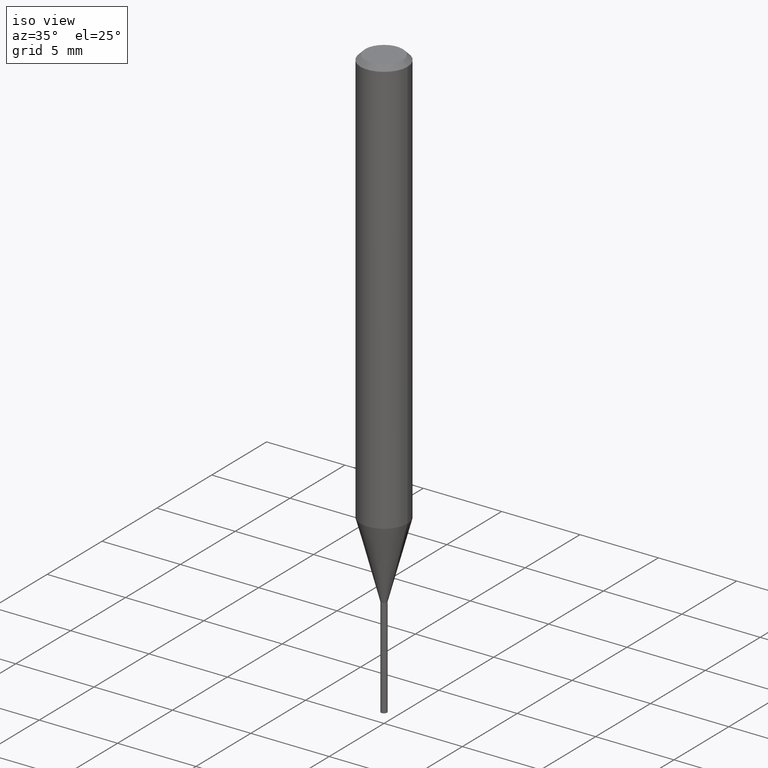
[diagram: clean part render]
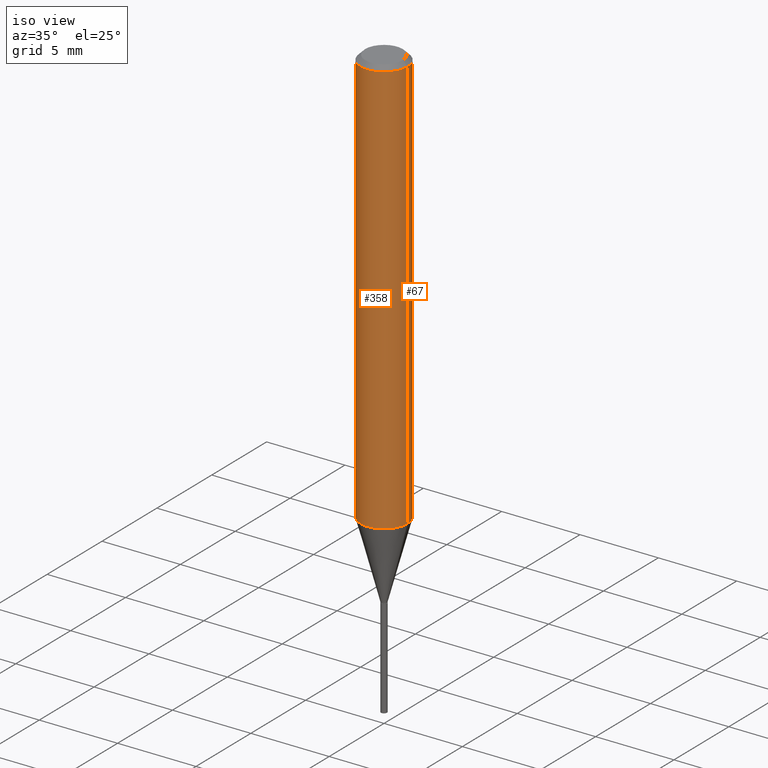
[diagram: same view with one multi-face feature highlighted, each face labeled with its STEP entity id]
A machine part, iso view. The highlighted faces form ONE feature: a constant-radius fillet chain: 2 tangent blend faces with common blend radius 1.4999 mm. The faces share edges in the B-rep.
Their STEP definitions:
[1] entity #67 (Cylinder):
#6 = VECTOR ( 'NONE', #190, 39.37007874015748143 ) ;
#8 = EDGE_LOOP ( 'NONE', ( #393, #370, #74, #109 ) ) ;
#46 = CARTESIAN_POINT ( 'NONE',  ( 0.05904999999999999832, -4.535783407291118600E-16, -0.01181000000000007218 ) ) ;
#63 = CARTESIAN_POINT ( 'NONE',  ( 0.000000000000000000, 0.000000000000000000, 0.000000000000000000 ) ) ;
#67 = ADVANCED_FACE ( 'NONE', ( #169 ), #316, .T. ) ;
#73 = AXIS2_PLACEMENT_3D ( 'NONE', #415, #229, #122 ) ;
#74 = ORIENTED_EDGE ( 'NONE', *, *, #471, .F. ) ;
#93 = CARTESIAN_POINT ( 'NONE',  ( 0.05905000000000011628, -4.076349087267857001E-15, -1.049412780869824147 ) ) ;
#97 = DIRECTION ( 'NONE',  ( -2.445468806185136597E-29, 3.491481338843145583E-15, 1.000000000000000000 ) ) ;
#109 = ORIENTED_EDGE ( 'NONE', *, *, #214, .F. ) ;
#122 = DIRECTION ( 'NONE',  ( 1.000000000000000000, -6.982962677686266711E-15, 0.000000000000000000 ) ) ;
#143 = DIRECTION ( 'NONE',  ( -2.445468806185136597E-29, 3.491481338843145583E-15, 1.000000000000000000 ) ) ;
#168 = DIRECTION ( 'NONE',  ( 1.000000000000000000, -6.982962677686266711E-15, 4.876176775795935793E-29 ) ) ;
#169 = FACE_OUTER_BOUND ( 'NONE', #8, .T. ) ;
#178 = VERTEX_POINT ( 'NONE', #93 ) ;
#190 = DIRECTION ( 'NONE',  ( -2.445468806185136877E-29, 3.491481338843145188E-15, 1.000000000000000000 ) ) ;
#206 = LINE ( 'NONE', #283, #339 ) ;
#214 = EDGE_CURVE ( 'NONE', #178, #480, #206, .T. ) ;
#216 = VERTEX_POINT ( 'NONE', #314 ) ;
#225 = CIRCLE ( 'NONE', #412, 0.05905000000000011628 ) ;
#229 = DIRECTION ( 'NONE',  ( -2.445468806185136597E-29, 3.491481338843145583E-15, 1.000000000000000000 ) ) ;
#252 = VERTEX_POINT ( 'NONE', #490 ) ;
#283 = CARTESIAN_POINT ( 'NONE',  ( 0.05905000000000006077, -4.123439461173744764E-16, 2.879382386107503023E-30 ) ) ;
#314 = CARTESIAN_POINT ( 'NONE',  ( -0.05904999999999999832, -1.433044282414769623E-15, -0.01181000000000007218 ) ) ;
#316 = CYLINDRICAL_SURFACE ( 'NONE', #427, 0.05905000000000006077 ) ;
#320 = DIRECTION ( 'NONE',  ( -2.445468806185136877E-29, 3.491481338843145188E-15, 1.000000000000000000 ) ) ;
#325 = EDGE_CURVE ( 'NONE', #252, #216, #361, .T. ) ;
#329 = CARTESIAN_POINT ( 'NONE',  ( -0.05905000000000006077, 4.195754854663395916E-16, -2.904631170795524694E-30 ) ) ;
#339 = VECTOR ( 'NONE', #320, 39.37007874015748143 ) ;
#361 = LINE ( 'NONE', #329, #6 ) ;
#367 = EDGE_CURVE ( 'NONE', #178, #252, #225, .T. ) ;
#370 = ORIENTED_EDGE ( 'NONE', *, *, #325, .T. ) ;
#393 = ORIENTED_EDGE ( 'NONE', *, *, #367, .T. ) ;
#412 = AXIS2_PLACEMENT_3D ( 'NONE', #486, #143, #453 ) ;
#415 = CARTESIAN_POINT ( 'NONE',  ( 2.888098660104664204E-31, -4.123439461173780263E-17, -0.01181000000000007218 ) ) ;
#427 = AXIS2_PLACEMENT_3D ( 'NONE', #63, #97, #168 ) ;
#449 = CIRCLE ( 'NONE', #73, 0.05904999999999999832 ) ;
#453 = DIRECTION ( 'NONE',  ( 1.000000000000000000, -6.982962677686266711E-15, 0.000000000000000000 ) ) ;
#471 = EDGE_CURVE ( 'NONE', #480, #216, #449, .T. ) ;
#480 = VERTEX_POINT ( 'NONE', #46 ) ;
#486 = CARTESIAN_POINT ( 'NONE',  ( 2.566306220429153348E-29, -3.664005141150482080E-15, -1.049412780869824147 ) ) ;
#490 = CARTESIAN_POINT ( 'NONE',  ( -0.05905000000000011628, -3.244429655684142193E-15, -1.049412780869824147 ) ) ;
[2] entity #358 (Cylinder):
#6 = VECTOR ( 'NONE', #190, 39.37007874015748143 ) ;
#11 = AXIS2_PLACEMENT_3D ( 'NONE', #403, #75, #29 ) ;
#29 = DIRECTION ( 'NONE',  ( 1.000000000000000000, -6.982962677686266711E-15, 4.876176775795935793E-29 ) ) ;
#46 = CARTESIAN_POINT ( 'NONE',  ( 0.05904999999999999832, -4.535783407291118600E-16, -0.01181000000000007218 ) ) ;
#75 = DIRECTION ( 'NONE',  ( -2.445468806185136597E-29, 3.491481338843145583E-15, 1.000000000000000000 ) ) ;
#93 = CARTESIAN_POINT ( 'NONE',  ( 0.05905000000000011628, -4.076349087267857001E-15, -1.049412780869824147 ) ) ;
#117 = EDGE_CURVE ( 'NONE', #216, #480, #311, .T. ) ;
#148 = CARTESIAN_POINT ( 'NONE',  ( 2.566306220429153348E-29, -3.664005141150482080E-15, -1.049412780869824147 ) ) ;
#149 = CIRCLE ( 'NONE', #299, 0.05905000000000011628 ) ;
#178 = VERTEX_POINT ( 'NONE', #93 ) ;
#190 = DIRECTION ( 'NONE',  ( -2.445468806185136877E-29, 3.491481338843145188E-15, 1.000000000000000000 ) ) ;
#206 = LINE ( 'NONE', #283, #339 ) ;
#211 = CARTESIAN_POINT ( 'NONE',  ( 2.888098660104664204E-31, -4.123439461173780263E-17, -0.01181000000000007218 ) ) ;
#214 = EDGE_CURVE ( 'NONE', #178, #480, #206, .T. ) ;
#216 = VERTEX_POINT ( 'NONE', #314 ) ;
#244 = DIRECTION ( 'NONE',  ( -2.445468806185136597E-29, 3.491481338843145583E-15, 1.000000000000000000 ) ) ;
#252 = VERTEX_POINT ( 'NONE', #490 ) ;
#262 = DIRECTION ( 'NONE',  ( 1.000000000000000000, -6.982962677686266711E-15, 0.000000000000000000 ) ) ;
#283 = CARTESIAN_POINT ( 'NONE',  ( 0.05905000000000006077, -4.123439461173744764E-16, 2.879382386107503023E-30 ) ) ;
#293 = ORIENTED_EDGE ( 'NONE', *, *, #214, .T. ) ;
#299 = AXIS2_PLACEMENT_3D ( 'NONE', #148, #301, #262 ) ;
#301 = DIRECTION ( 'NONE',  ( -2.445468806185136597E-29, 3.491481338843145583E-15, 1.000000000000000000 ) ) ;
#303 = FACE_OUTER_BOUND ( 'NONE', #382, .T. ) ;
#311 = CIRCLE ( 'NONE', #418, 0.05904999999999999832 ) ;
#314 = CARTESIAN_POINT ( 'NONE',  ( -0.05904999999999999832, -1.433044282414769623E-15, -0.01181000000000007218 ) ) ;
#320 = DIRECTION ( 'NONE',  ( -2.445468806185136877E-29, 3.491481338843145188E-15, 1.000000000000000000 ) ) ;
#325 = EDGE_CURVE ( 'NONE', #252, #216, #361, .T. ) ;
#329 = CARTESIAN_POINT ( 'NONE',  ( -0.05905000000000006077, 4.195754854663395916E-16, -2.904631170795524694E-30 ) ) ;
#339 = VECTOR ( 'NONE', #320, 39.37007874015748143 ) ;
#358 = ADVANCED_FACE ( 'NONE', ( #303 ), #363, .T. ) ;
#361 = LINE ( 'NONE', #329, #6 ) ;
#363 = CYLINDRICAL_SURFACE ( 'NONE', #11, 0.05905000000000006077 ) ;
#380 = ORIENTED_EDGE ( 'NONE', *, *, #325, .F. ) ;
#382 = EDGE_LOOP ( 'NONE', ( #380, #444, #293, #448 ) ) ;
#390 = EDGE_CURVE ( 'NONE', #252, #178, #149, .T. ) ;
#403 = CARTESIAN_POINT ( 'NONE',  ( 0.000000000000000000, 0.000000000000000000, 0.000000000000000000 ) ) ;
#418 = AXIS2_PLACEMENT_3D ( 'NONE', #211, #244, #468 ) ;
#444 = ORIENTED_EDGE ( 'NONE', *, *, #390, .T. ) ;
#448 = ORIENTED_EDGE ( 'NONE', *, *, #117, .F. ) ;
#468 = DIRECTION ( 'NONE',  ( 1.000000000000000000, -6.982962677686266711E-15, 0.000000000000000000 ) ) ;
#480 = VERTEX_POINT ( 'NONE', #46 ) ;
#490 = CARTESIAN_POINT ( 'NONE',  ( -0.05905000000000011628, -3.244429655684142193E-15, -1.049412780869824147 ) ) ;